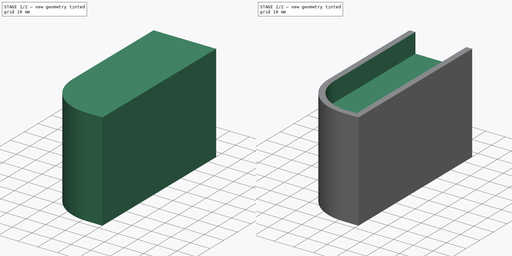
[diagram: build sequence overview — one tinted view per stage of 2, left to right]
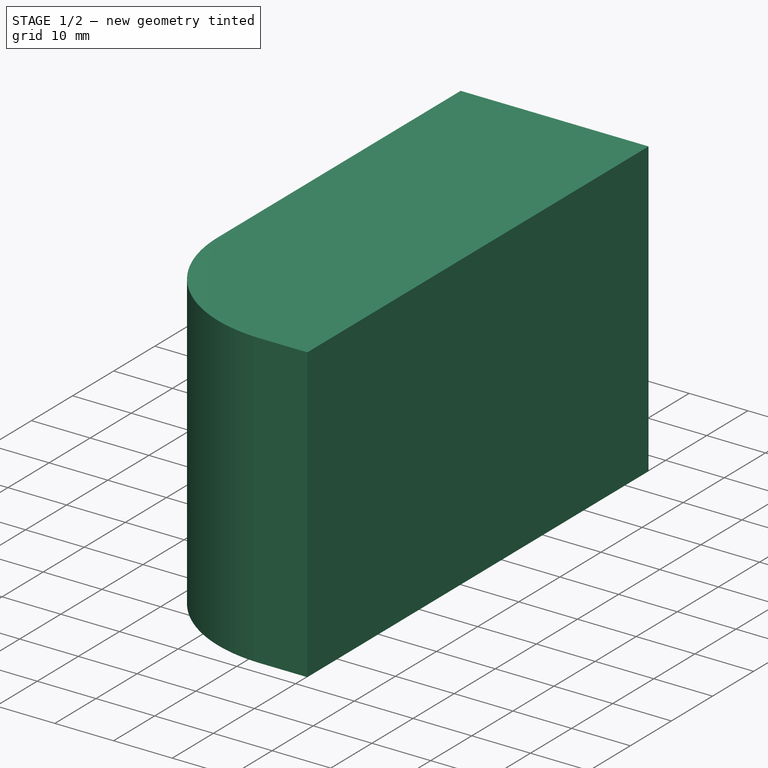
[diagram: stage 1 of 2 — iso view after this stage's code; geometry added in this stage tinted green]
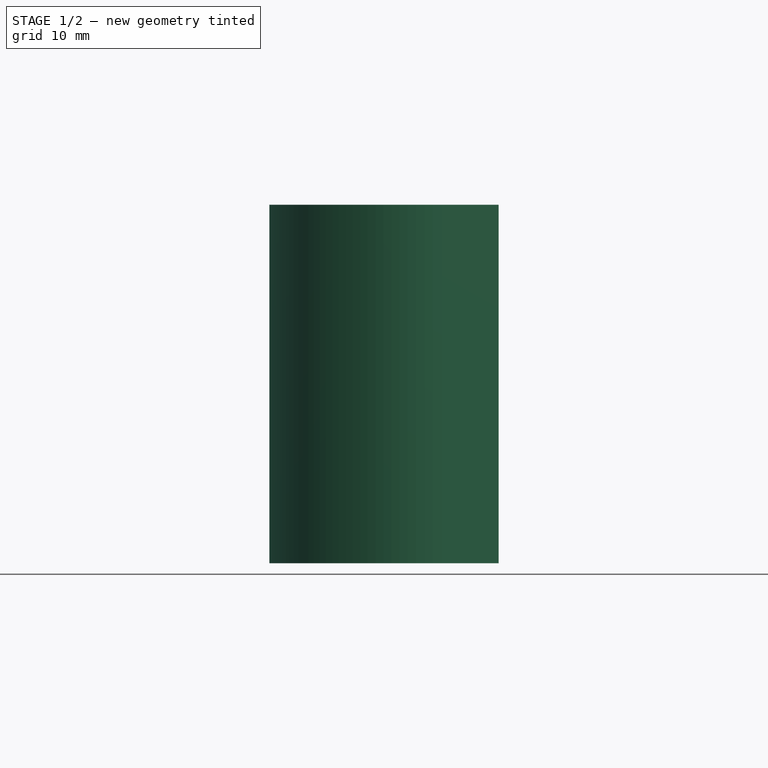
[diagram: stage 1 of 2 — front view after this stage's code; geometry added in this stage tinted green]
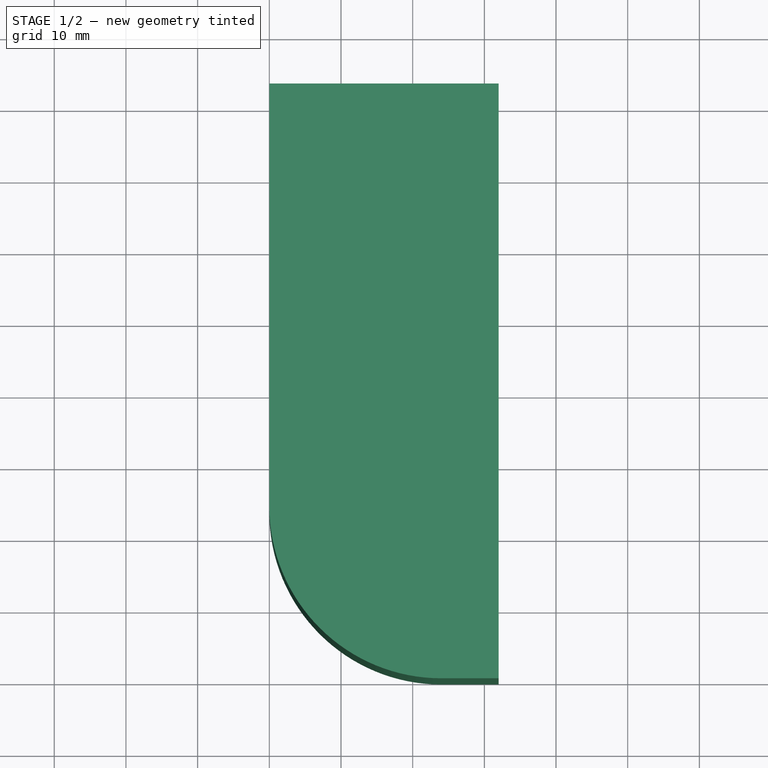
[diagram: stage 1 of 2 — top view after this stage's code; geometry added in this stage tinted green]
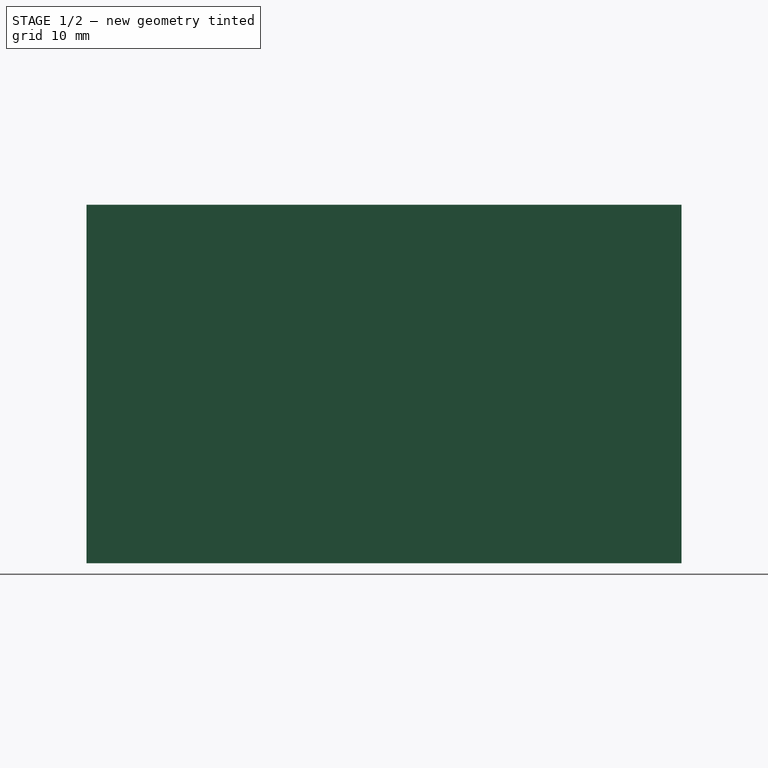
[diagram: stage 1 of 2 — right view after this stage's code; geometry added in this stage tinted green]
FCSTD DOCUMENT  (FreeCAD 0.20R29603 (Git))
Label: cale-avant-gauche-stand
License: Public Domain
LicenseURL: http://en.wikipedia.org/wiki/Public_domain
objects: Sketcher::SketchObject×2, PartDesign::Pad×1, PartDesign::Pocket×1, PartDesign::Body×1
note: 7 computed .brp shape members not serialized (recipe doc carries the construction recipe); baked Part::Feature solids carry a one-line shape summary decoded from their .brp

FEATURE [Sketcher::SketchObject] Sketch
  FullyConstrained = true
  MapMode = 5
  Support = -> [XY_Plane]
  sketch-geometry (5):
    g0: LineSegment StartX=32 StartY=0 StartZ=0 EndX=32 EndY=83 EndZ=0
    g1: LineSegment StartX=32 StartY=83 StartZ=0 EndX=0 EndY=83 EndZ=0
    g2: LineSegment StartX=0 StartY=83 StartZ=0 EndX=0 EndY=24 EndZ=0
    g3: LineSegment StartX=32 StartY=0 StartZ=0 EndX=24 EndY=1.92557e-11 EndZ=0
    g4: ArcOfCircle CenterX=24 CenterY=24 CenterZ=0 NormalX=0 NormalY=0 NormalZ=1 AngleXU=0 Radius=24 StartAngle=3.14159 EndAngle=4.71239
  constraints (14):
    c: Vertical(g0)
    c: DistanceY(g0) = 83
    c: Coincident(g1,g0)
    c: Horizontal(g1)
    c: PointOnObject(g0,g-1)
    c: Coincident(g2,g1)
    c: PointOnObject(g2,g-2)
    c: Coincident(g3,g0)
    c: PointOnObject(g3,g-1)
    c: DistanceX(g3,g3) = 8
    c: Tangent(g4,g2) = -1.5708
    c: DistanceX(g1,g1) = 32
    c: PointOnObject(g1,g-2)
    c: Tangent(g4,g3) = 1.5708
FEATURE [PartDesign::Pad] Pad
  Direction = (0,0,1)
  Length = 50
  Length2 = 10
  Profile = -> Sketch
  ReferenceAxis = -> Sketch [N_Axis]
  Type = 0
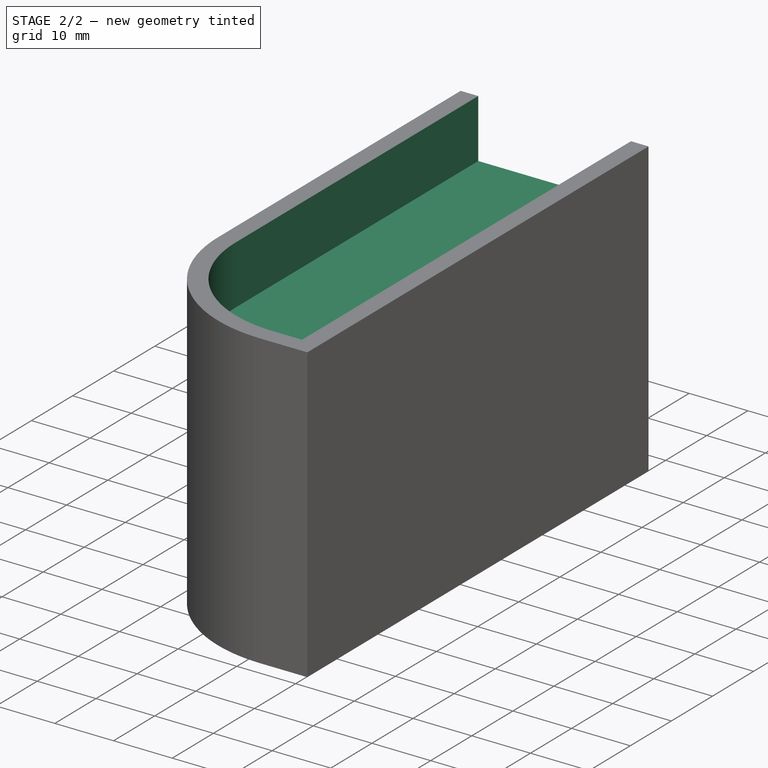
[diagram: stage 2 of 2 — iso view after this stage's code; geometry added in this stage tinted green]
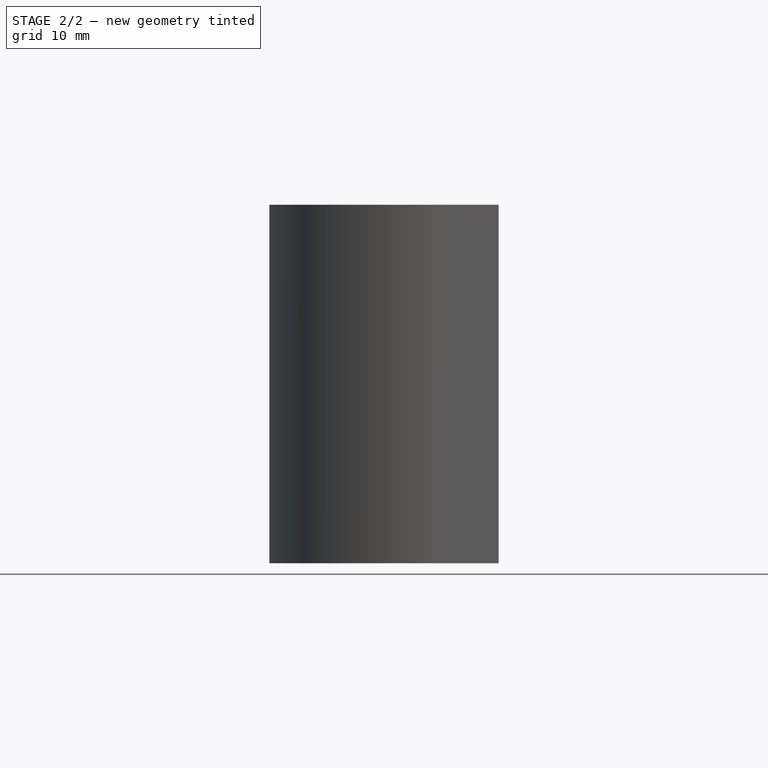
[diagram: stage 2 of 2 — front view after this stage's code; geometry added in this stage tinted green]
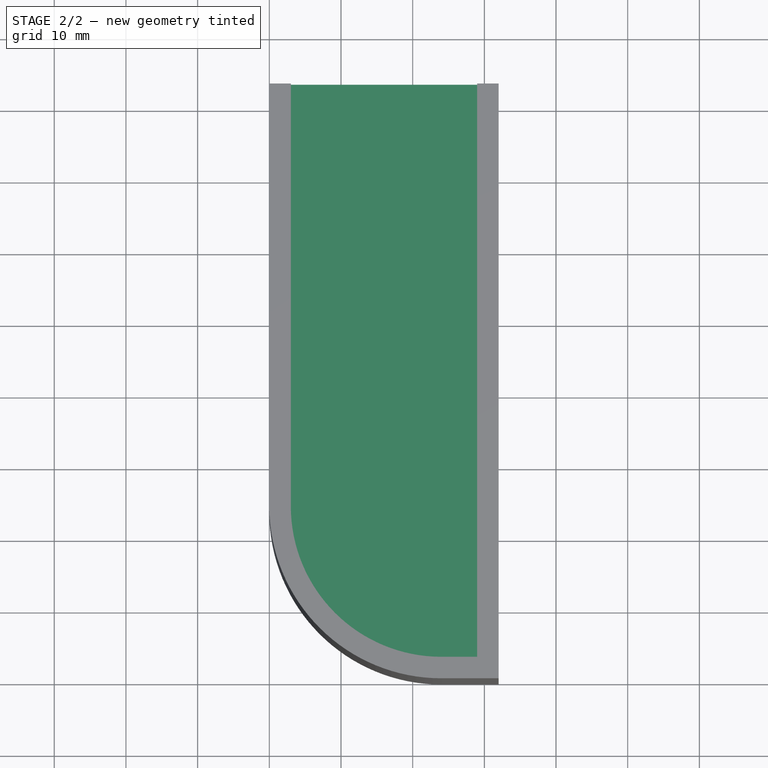
[diagram: stage 2 of 2 — top view after this stage's code; geometry added in this stage tinted green]
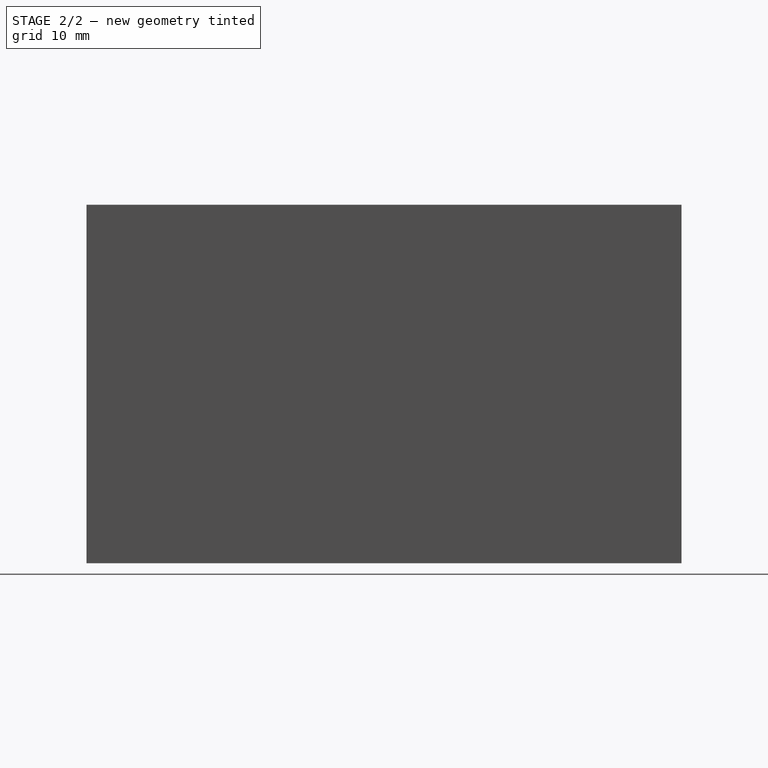
[diagram: stage 2 of 2 — right view after this stage's code; geometry added in this stage tinted green]
FEATURE [Sketcher::SketchObject] Sketch001
  FullyConstrained = true
  MapMode = 5
  Placement = pos=(0,0,50) rot=(0,0,1;0rad)
  Support = -> [Pad]
  sketch-geometry (5):
    g0: LineSegment StartX=3 StartY=86 StartZ=0 EndX=3 EndY=24 EndZ=0
    g1: LineSegment StartX=3 StartY=86 StartZ=0 EndX=29 EndY=86 EndZ=0
    g2: LineSegment StartX=29 StartY=86 StartZ=0 EndX=29 EndY=3 EndZ=0
    g3: ArcOfCircle CenterX=24 CenterY=24 CenterZ=0 NormalX=0 NormalY=0 NormalZ=1 AngleXU=0 Radius=21 StartAngle=3.14159 EndAngle=4.71239
    g4: LineSegment StartX=24 StartY=3 StartZ=0 EndX=29 EndY=3 EndZ=0
  constraints (14):
    c: Vertical(g0)
    c: Coincident(g1,g0)
    c: Horizontal(g1)
    c: Coincident(g2,g1)
    c: Vertical(g2)
    c: DistanceX(g-1,g0) = 3
    c: DistanceX(g1,g1) = 26
    c: DistanceY(g-1,g2) = 3
    c: Coincident(g4,g2)
    c: Horizontal(g4)
    c: DistanceX(g4,g4) = 5
    c: Tangent(g4,g3) = -1.5708
    c: Tangent(g3,g0) = -1.5708
    c: DistanceY(g2,g2) = 83
FEATURE [PartDesign::Pocket] Pocket
  BaseFeature = -> Pad
  Direction = (0,0,-1)
  Length = 10
  Length2 = 5
  Profile = -> Sketch001
  ReferenceAxis = -> Sketch001 [N_Axis]
  Type = 0
FEATURE [PartDesign::Body] Body
  Group = -> [Sketch,Pad,Sketch001,Pocket]
  Origin = -> Origin
  Tip = -> Pocket
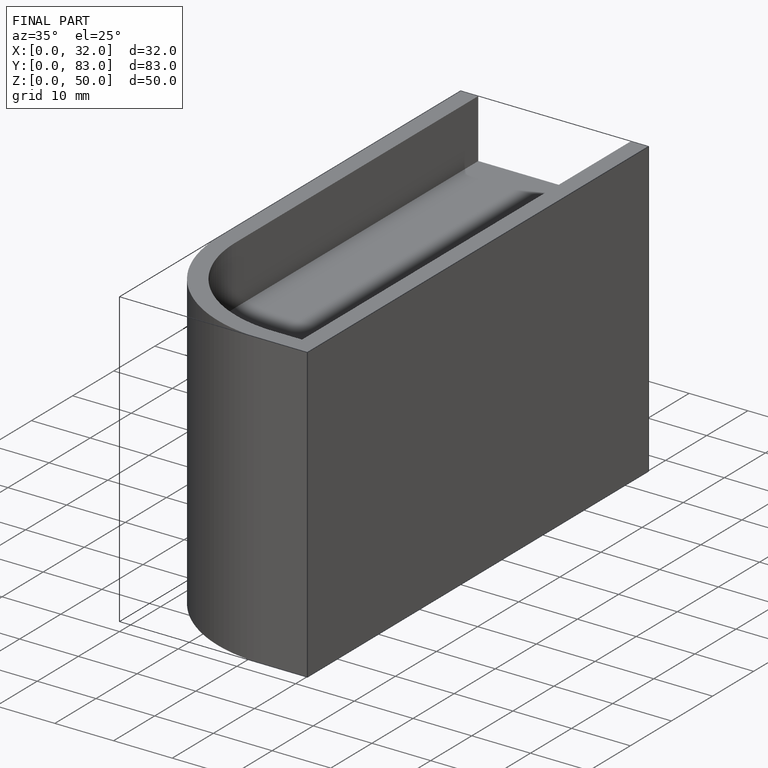
[diagram: finished part — iso view with bounding-box wireframe]
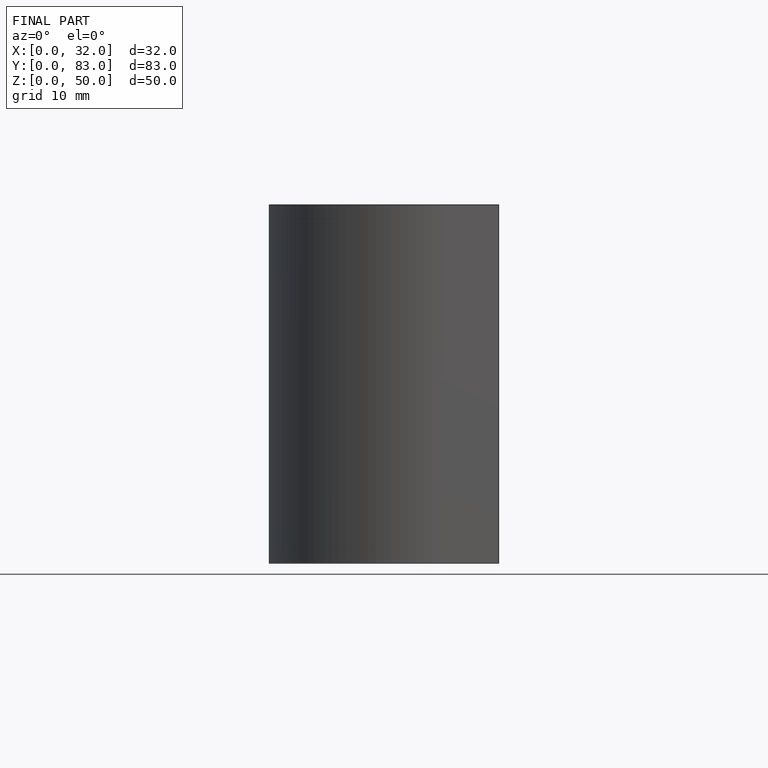
[diagram: finished part — front view with bounding-box wireframe]
